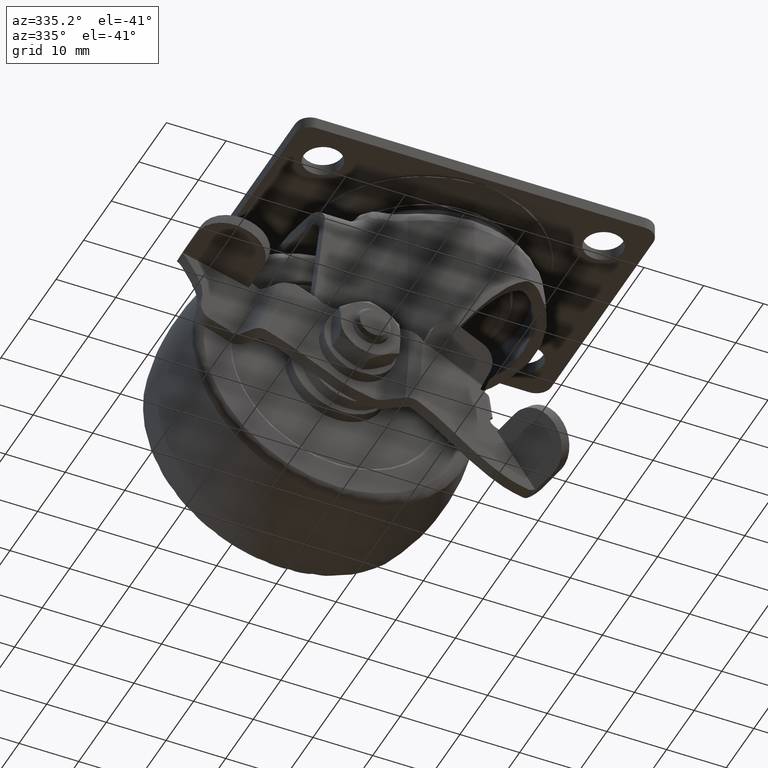
[diagram: clean part render]
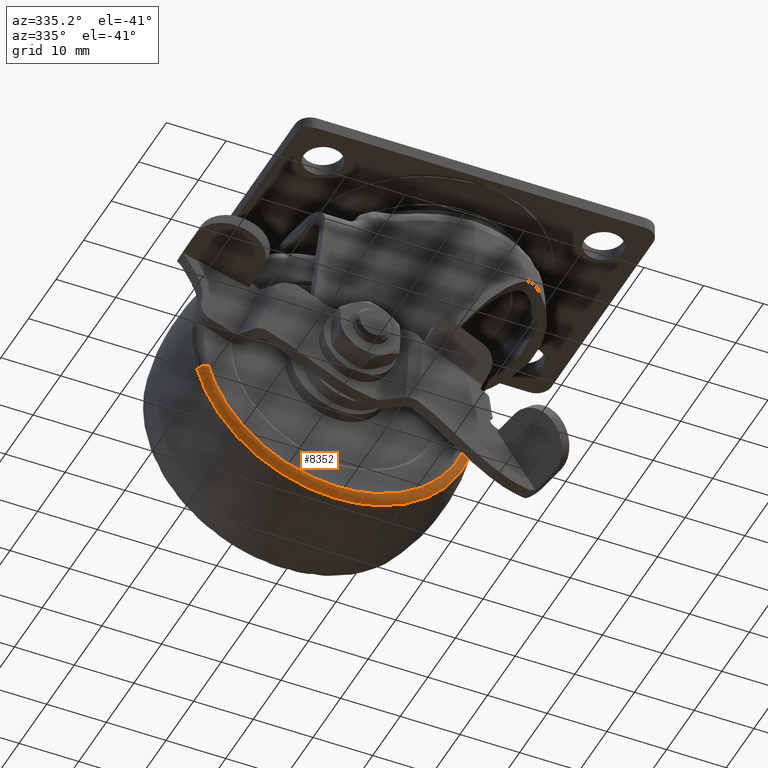
[diagram: same view with one face highlighted and labeled with its STEP entity id]
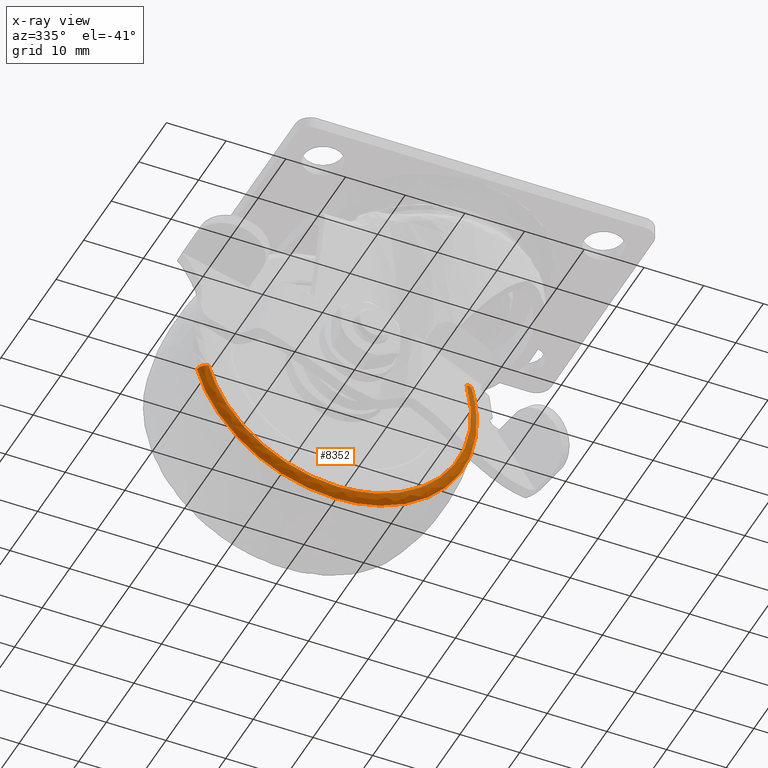
[diagram: x-ray of the same camera — body ghosted, the highlighted face saturated]
A machine part, auxiliary view. The second image highlights one B-rep face of the part: STEP entity #8352.
The next image is the same camera in x-ray: the body ghosted, the highlighted face saturated — about 7% of this face is hidden behind the body in this view.
In plain terms, the highlighted face is a freeform B-spline surface patch.
Its self-contained STEP definition (entity closure, byte-faithful):
#8066=CARTESIAN_POINT('',(4.028807890746711,-8.880597014979234,-33.778225137877442));
#8067=VERTEX_POINT('',#8066);
#8081=CARTESIAN_POINT('',(-19.0,-8.880597014977429,-63.855114588684252));
#8082=VERTEX_POINT('',#8081);
#8083=CARTESIAN_POINT('',(4.028807890746711,-8.880597014979234,-33.778225137877442));
#8084=CARTESIAN_POINT('',(4.854615588691522,-8.880597014979143,-36.834562298863986));
#8085=CARTESIAN_POINT('',(4.854615588691961,-8.880597014979022,-40.000499000001682));
#8086=CARTESIAN_POINT('',(4.854615588695267,-8.880597014978124,-63.855114588684934));
#8087=CARTESIAN_POINT('',(-19.0,-8.880597014977429,-63.855114588684252));
#8095=(BOUNDED_CURVE()B_SPLINE_CURVE(2,(#8083,#8084,#8085,#8086,#8087),.UNSPECIFIED.,.F.,.U.)B_SPLINE_CURVE_WITH_KNOTS((3,2,3),(0.205522207670828,0.250000000000000,0.500000000000000),.UNSPECIFIED.)CURVE()GEOMETRIC_REPRESENTATION_ITEM()RATIONAL_B_SPLINE_CURVE((0.914323587275895,0.947891024955970,1.0,0.707106781186547,1.0))REPRESENTATION_ITEM(''));
#8096=EDGE_CURVE('',#8067,#8082,#8095,.T.);
#8160=CARTESIAN_POINT('',(-42.028807890746720,-8.880597014979237,-46.222772862122753));
#8161=VERTEX_POINT('',#8160);
#8162=CARTESIAN_POINT('',(-19.0,-8.880597014977429,-63.855114588684252));
#8163=CARTESIAN_POINT('',(-37.264633402265247,-8.880597014978337,-63.855114588683350));
#8164=CARTESIAN_POINT('',(-42.028807890746712,-8.880597014979237,-46.222772862122753));
#8172=(BOUNDED_CURVE()B_SPLINE_CURVE(2,(#8162,#8163,#8164),.UNSPECIFIED.,.F.,.U.)B_SPLINE_CURVE_WITH_KNOTS((3,3),(0.500000000000000,0.705522207670828),.UNSPECIFIED.)CURVE()GEOMETRIC_REPRESENTATION_ITEM()RATIONAL_B_SPLINE_CURVE((1.0,0.759215756230578,0.914323587275895))REPRESENTATION_ITEM(''));
#8173=EDGE_CURVE('',#8082,#8161,#8172,.T.);
#8222=CARTESIAN_POINT('',(-40.628123996392233,-10.0,-45.844314766339409));
#8223=VERTEX_POINT('',#8222);
#8241=CARTESIAN_POINT('',(2.628123996392223,-10.0,-34.156683233660793));
#8242=VERTEX_POINT('',#8241);
#8256=CARTESIAN_POINT('',(2.628123996392223,-10.0,-34.156683233660786));
#8257=CARTESIAN_POINT('',(3.745336150181859,-9.999999997331576,-33.854817847717804));
#8258=CARTESIAN_POINT('',(4.028807890746711,-8.880597014979234,-33.778225137877435));
#8266=(BOUNDED_CURVE()B_SPLINE_CURVE(2,(#8256,#8257,#8258),.UNSPECIFIED.,.F.,.U.)B_SPLINE_CURVE_WITH_KNOTS((3,3),(-1.696660180817103,-0.309254776777569),.UNSPECIFIED.)CURVE()GEOMETRIC_REPRESENTATION_ITEM()RATIONAL_B_SPLINE_CURVE((0.899876955605647,0.711843933802432,0.898280470861737))REPRESENTATION_ITEM(''));
#8267=EDGE_CURVE('',#8242,#8067,#8266,.T.);
#8271=CARTESIAN_POINT('',(-40.628123996392226,-10.0,-45.844314766339409));
#8272=CARTESIAN_POINT('',(-41.745336150181863,-9.999999997331582,-46.146180152282383));
#8273=CARTESIAN_POINT('',(-42.028807890746720,-8.880597014979237,-46.222772862122753));
#8281=(BOUNDED_CURVE()B_SPLINE_CURVE(2,(#8271,#8272,#8273),.UNSPECIFIED.,.F.,.U.)B_SPLINE_CURVE_WITH_KNOTS((3,3),(-1.696660180817107,-0.309254776777570),.UNSPECIFIED.)CURVE()GEOMETRIC_REPRESENTATION_ITEM()RATIONAL_B_SPLINE_CURVE((0.899876955605648,0.711843933802432,0.898280470861737))REPRESENTATION_ITEM(''));
#8282=EDGE_CURVE('',#8223,#8161,#8281,.T.);
#8287=CARTESIAN_POINT('',(2.378112617907059,-9.997271825408504,-33.578059148681653));
#8288=CARTESIAN_POINT('',(2.458996115428862,-9.997271825408506,-33.877411213093467));
#8289=CARTESIAN_POINT('',(8.361055816974426,-9.997271825408506,-55.721097627162372));
#8290=CARTESIAN_POINT('',(-13.179771405093920,-9.997271825408504,-61.541326222068442));
#8291=CARTESIAN_POINT('',(-34.720598627162261,-9.997271825408506,-67.361554816974532));
#8292=CARTESIAN_POINT('',(-40.622658328694087,-9.997271825408504,-45.517868402956459));
#8293=CARTESIAN_POINT('',(-40.703541826202489,-9.997271825408504,-45.218516338594320));
#8294=CARTESIAN_POINT('',(3.629971457834864,-10.076184694905775,-33.201974119779578));
#8295=CARTESIAN_POINT('',(3.715591328636512,-10.076184694905775,-33.518855632874832));
#8296=CARTESIAN_POINT('',(9.963263654795748,-10.076184694905773,-56.641663942445284));
#8297=CARTESIAN_POINT('',(-12.838950643824719,-10.076184694905773,-62.802713298620553));
#8298=CARTESIAN_POINT('',(-35.641164942445180,-10.076184694905773,-68.963762654795872));
#8299=CARTESIAN_POINT('',(-41.888837268589882,-10.076184694905775,-45.840954345279201));
#8300=CARTESIAN_POINT('',(-41.974457139377314,-10.076184694905773,-45.524072832236506));
#8301=CARTESIAN_POINT('',(3.874338921868630,-8.792272984201146,-33.128560934648277));
#8302=CARTESIAN_POINT('',(3.960883350208394,-8.792272984201148,-33.448864260797905));
#8303=CARTESIAN_POINT('',(10.276020535760058,-8.792272984201148,-56.821361883431656));
#8304=CARTESIAN_POINT('',(-12.772421173835749,-8.792272984201146,-63.048940709595911));
#8305=CARTESIAN_POINT('',(-35.820862883431545,-8.792272984201148,-69.276519535760158));
#8306=CARTESIAN_POINT('',(-42.136000068968521,-8.792272984201146,-45.904021913180820));
#8307=CARTESIAN_POINT('',(-42.222544497293924,-8.792272984201148,-45.583718587084327));
#8315=(BOUNDED_SURFACE()B_SPLINE_SURFACE(2,2,((#8287,#8294,#8301),(#8288,#8295,#8302),(#8289,#8296,#8303),(#8290,#8297,#8304),(#8291,#8298,#8305),(#8292,#8299,#8306),(#8293,#8300,#8307)),.UNSPECIFIED.,.F.,.F.,.U.)B_SPLINE_SURFACE_WITH_KNOTS((3,1,2,1,3),(3,3),(0.0,0.791146362453046,40.348464478502763,79.905782594552477,80.696928956871957),(0.0,2.250434219955894),.UNSPECIFIED.)GEOMETRIC_REPRESENTATION_ITEM()RATIONAL_B_SPLINE_SURFACE(((0.930369485323708,0.700314562822602,0.928592948585297),(0.924982618132798,0.696259720524681,0.923216367595322),(0.650252391441344,0.489462763364551,0.649010737151454),(0.919595750941888,0.692204878226760,0.917839786605346),(0.650252391441344,0.489462763364551,0.649010737151454),(0.924982618131888,0.696259720523997,0.923216367594414),(0.930369485321889,0.700314562821233,0.928592948583481)))REPRESENTATION_ITEM('')SURFACE());
#8316=CARTESIAN_POINT('',(-19.0,-10.0,-62.404202492039403));
#8317=VERTEX_POINT('',#8316);
#8318=CARTESIAN_POINT('',(-19.0,-10.0,-62.404202492039403));
#8319=CARTESIAN_POINT('',(-36.153721452843428,-10.000000000000002,-62.404202492490597));
#8320=CARTESIAN_POINT('',(-40.628123996392226,-10.0,-45.844314766339416));
#8328=(BOUNDED_CURVE()B_SPLINE_CURVE(2,(#8318,#8319,#8320),.UNSPECIFIED.,.F.,.U.)B_SPLINE_CURVE_WITH_KNOTS((3,3),(0.500000000000000,0.705522207670111),.UNSPECIFIED.)CURVE()GEOMETRIC_REPRESENTATION_ITEM()RATIONAL_B_SPLINE_CURVE((1.0,0.759215756231417,0.914323587274813))REPRESENTATION_ITEM(''));
#8329=EDGE_CURVE('',#8317,#8223,#8328,.T.);
#8330=ORIENTED_EDGE('',*,*,#8329,.T.);
#8331=ORIENTED_EDGE('',*,*,#8282,.T.);
#8332=ORIENTED_EDGE('',*,*,#8173,.F.);
#8333=ORIENTED_EDGE('',*,*,#8096,.F.);
#8334=ORIENTED_EDGE('',*,*,#8267,.F.);
#8335=CARTESIAN_POINT('',(2.628123996392224,-10.0,-34.156683233660779));
#8336=CARTESIAN_POINT('',(3.403703495209510,-10.0,-37.027124439223641));
#8337=CARTESIAN_POINT('',(3.403703494987878,-10.0,-40.000498999203408));
#8338=CARTESIAN_POINT('',(3.403703493317924,-10.000000000000002,-62.404202491693923));
#8339=CARTESIAN_POINT('',(-19.0,-10.0,-62.404202492039403));
#8347=(BOUNDED_CURVE()B_SPLINE_CURVE(2,(#8335,#8336,#8337,#8338,#8339),.UNSPECIFIED.,.F.,.U.)B_SPLINE_CURVE_WITH_KNOTS((3,2,3),(0.205522207670111,0.250000000000000,0.500000000000000),.UNSPECIFIED.)CURVE()GEOMETRIC_REPRESENTATION_ITEM()RATIONAL_B_SPLINE_CURVE((0.914323587274813,0.947891024955130,1.0,0.707106781186548,1.0))REPRESENTATION_ITEM(''));
#8348=EDGE_CURVE('',#8242,#8317,#8347,.T.);
#8349=ORIENTED_EDGE('',*,*,#8348,.T.);
#8350=EDGE_LOOP('',(#8330,#8331,#8332,#8333,#8334,#8349));
#8351=FACE_OUTER_BOUND('',#8350,.T.);
#8352=ADVANCED_FACE('',(#8351),#8315,.T.);